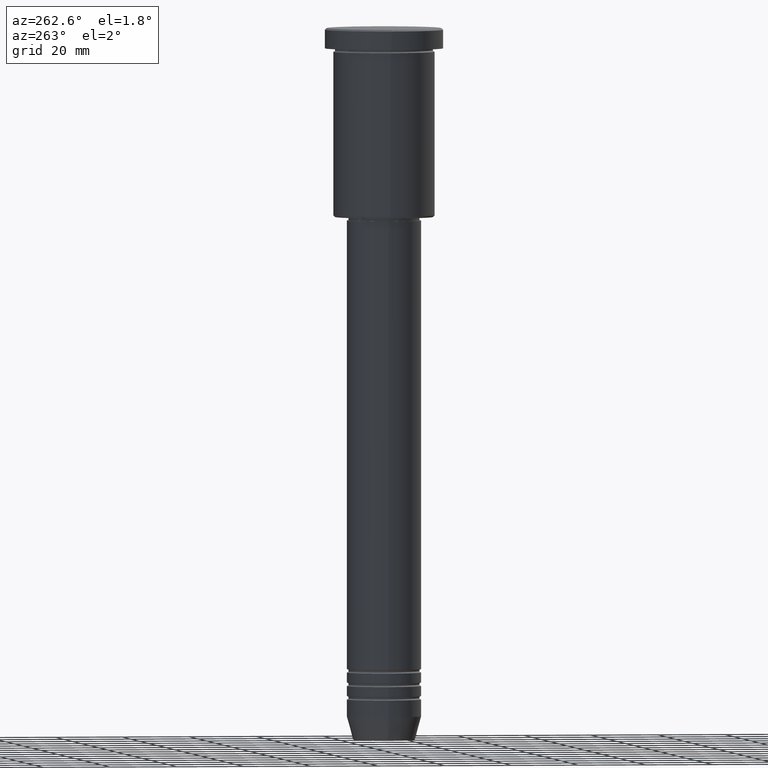
[diagram: clean part render]
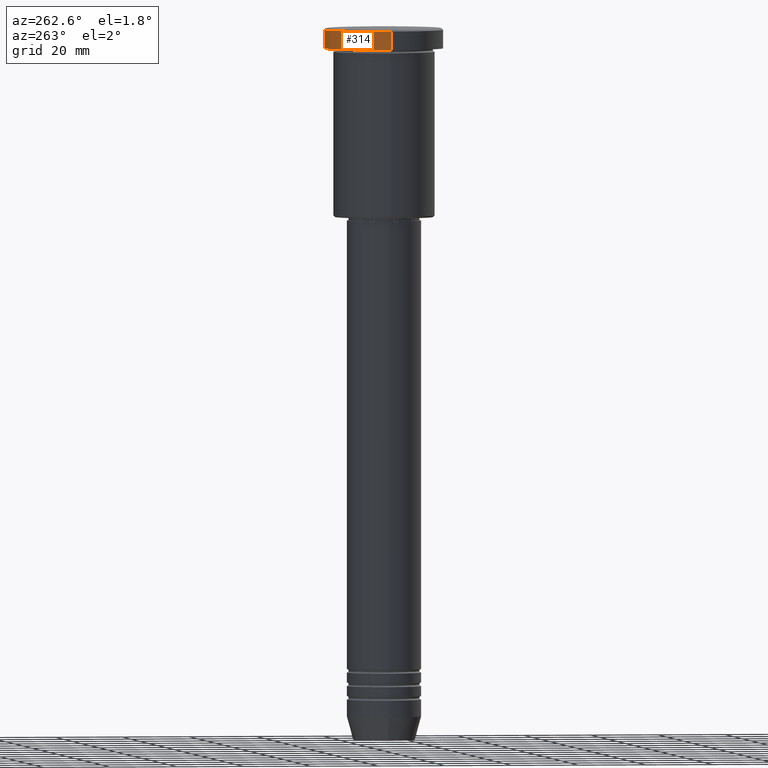
[diagram: same view with one face highlighted and labeled with its STEP entity id]
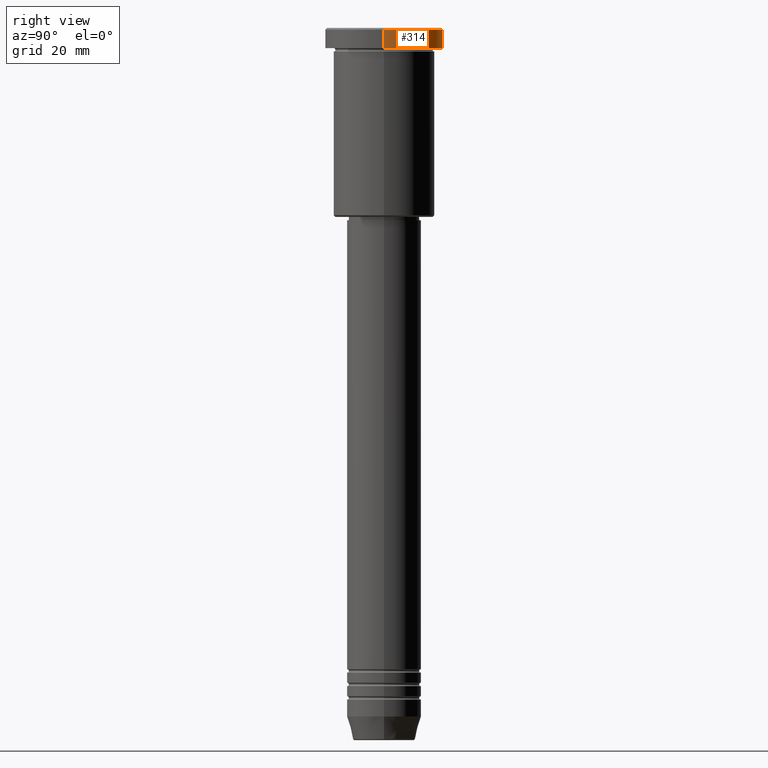
[diagram: same view with one face highlighted and labeled with its STEP entity id]
A machine part, auxiliary view. The second image highlights one B-rep face of the part: STEP entity #314.
A second angle (right view) of the same face is appended — the face is thin or edge-on in the first view.
In plain terms, the highlighted cylindrical surface (partial cylindrical patch) has radius 17.5 mm, axis along (-0, -0, 1).
Its self-contained STEP definition (entity closure, byte-faithful):
#14 = CYLINDRICAL_SURFACE ( 'NONE', #1131, 17.50000000000000000 ) ;
#72 = EDGE_CURVE ( 'NONE', #80, #1105, #404, .T. ) ;
#80 = VERTEX_POINT ( 'NONE', #313 ) ;
#83 = ORIENTED_EDGE ( 'NONE', *, *, #72, .T. ) ;
#123 = DIRECTION ( 'NONE',  ( -0.000000000000000000, -0.000000000000000000, 1.000000000000000000 ) ) ;
#159 = AXIS2_PLACEMENT_3D ( 'NONE', #243, #792, #612 ) ;
#164 = EDGE_CURVE ( 'NONE', #882, #80, #228, .T. ) ;
#179 = VERTEX_POINT ( 'NONE', #530 ) ;
#195 = ORIENTED_EDGE ( 'NONE', *, *, #321, .F. ) ;
#228 = CIRCLE ( 'NONE', #357, 17.50000000000000000 ) ;
#243 = CARTESIAN_POINT ( 'NONE',  ( 0.000000000000000000, 0.000000000000000000, -0.5000000000000559552 ) ) ;
#313 = CARTESIAN_POINT ( 'NONE',  ( -17.50000000000000000, 2.143131898507868248E-15, -5.999999999999995559 ) ) ;
#314 = ADVANCED_FACE ( 'NONE', ( #834 ), #14, .T. ) ;
#321 = EDGE_CURVE ( 'NONE', #882, #179, #1108, .T. ) ;
#328 = CARTESIAN_POINT ( 'NONE',  ( -17.50000000000000000, 2.143131898507868248E-15, 0.000000000000000000 ) ) ;
#330 = EDGE_LOOP ( 'NONE', ( #1157, #83, #863, #195 ) ) ;
#357 = AXIS2_PLACEMENT_3D ( 'NONE', #591, #953, #512 ) ;
#383 = CARTESIAN_POINT ( 'NONE',  ( 0.000000000000000000, 0.000000000000000000, 0.000000000000000000 ) ) ;
#404 = LINE ( 'NONE', #328, #506 ) ;
#455 = CIRCLE ( 'NONE', #159, 17.50000000000000000 ) ;
#506 = VECTOR ( 'NONE', #123, 1000.000000000000000 ) ;
#512 = DIRECTION ( 'NONE',  ( 1.000000000000000000, 0.000000000000000000, 0.000000000000000000 ) ) ;
#530 = CARTESIAN_POINT ( 'NONE',  ( 17.50000000000000000, 0.000000000000000000, -0.5000000000000559552 ) ) ;
#566 = CARTESIAN_POINT ( 'NONE',  ( 17.50000000000000000, 0.000000000000000000, 0.000000000000000000 ) ) ;
#591 = CARTESIAN_POINT ( 'NONE',  ( 0.000000000000000000, 0.000000000000000000, -5.999999999999995559 ) ) ;
#612 = DIRECTION ( 'NONE',  ( 1.000000000000000000, 0.000000000000000000, 0.000000000000000000 ) ) ;
#620 = VECTOR ( 'NONE', #927, 1000.000000000000000 ) ;
#747 = DIRECTION ( 'NONE',  ( -0.000000000000000000, -0.000000000000000000, 1.000000000000000000 ) ) ;
#792 = DIRECTION ( 'NONE',  ( 0.000000000000000000, 0.000000000000000000, -1.000000000000000000 ) ) ;
#834 = FACE_OUTER_BOUND ( 'NONE', #330, .T. ) ;
#839 = DIRECTION ( 'NONE',  ( 1.000000000000000000, 0.000000000000000000, 0.000000000000000000 ) ) ;
#863 = ORIENTED_EDGE ( 'NONE', *, *, #875, .T. ) ;
#875 = EDGE_CURVE ( 'NONE', #1105, #179, #455, .T. ) ;
#882 = VERTEX_POINT ( 'NONE', #973 ) ;
#927 = DIRECTION ( 'NONE',  ( -0.000000000000000000, -0.000000000000000000, 1.000000000000000000 ) ) ;
#953 = DIRECTION ( 'NONE',  ( -0.000000000000000000, -0.000000000000000000, 1.000000000000000000 ) ) ;
#973 = CARTESIAN_POINT ( 'NONE',  ( 17.50000000000000000, 0.000000000000000000, -5.999999999999995559 ) ) ;
#1105 = VERTEX_POINT ( 'NONE', #1114 ) ;
#1108 = LINE ( 'NONE', #566, #620 ) ;
#1114 = CARTESIAN_POINT ( 'NONE',  ( -17.50000000000000000, 2.143131898507868248E-15, -0.5000000000000559552 ) ) ;
#1131 = AXIS2_PLACEMENT_3D ( 'NONE', #383, #747, #839 ) ;
#1157 = ORIENTED_EDGE ( 'NONE', *, *, #164, .T. ) ;